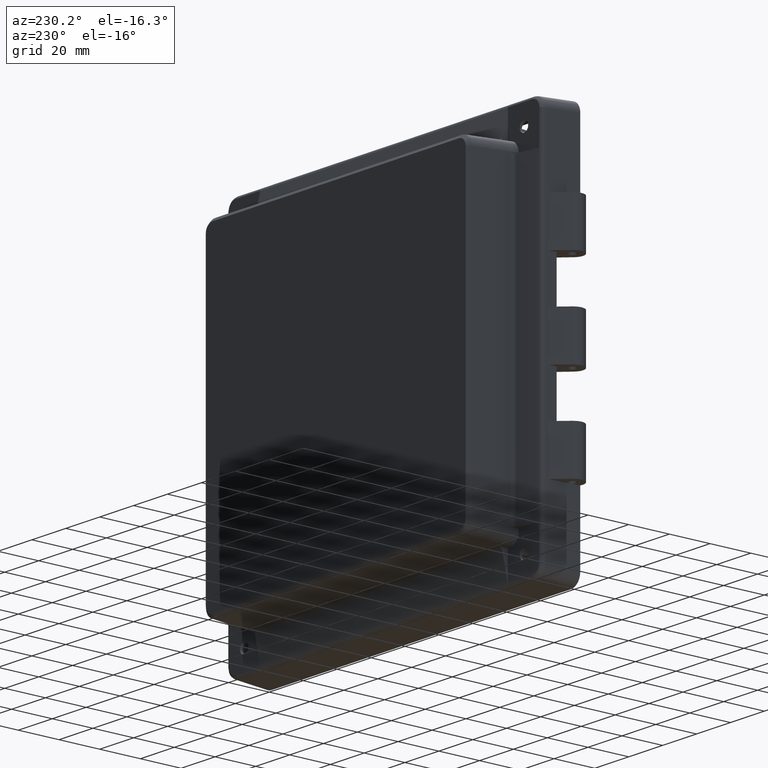
[diagram: clean part render]
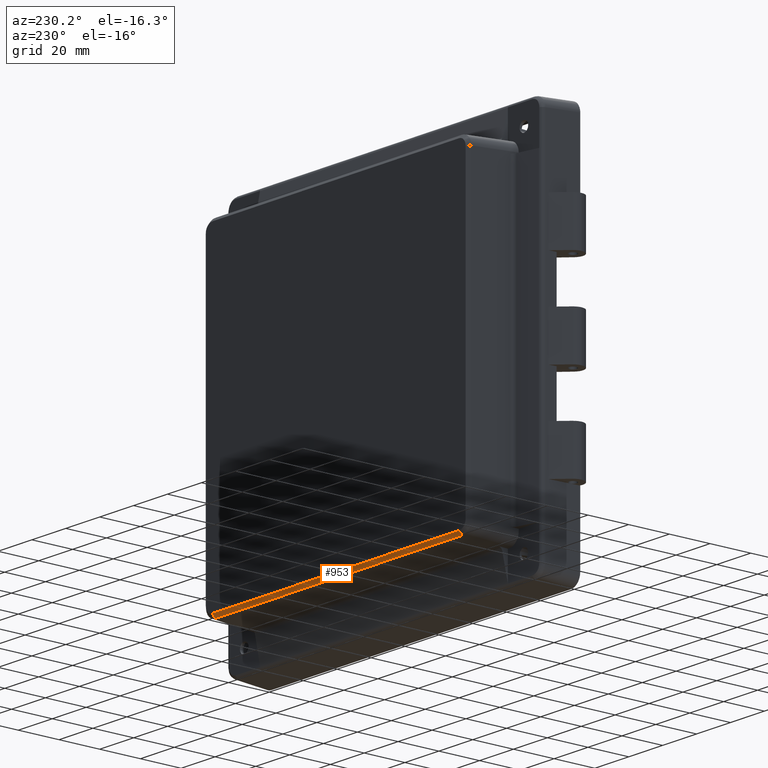
[diagram: same view with one face highlighted and labeled with its STEP entity id]
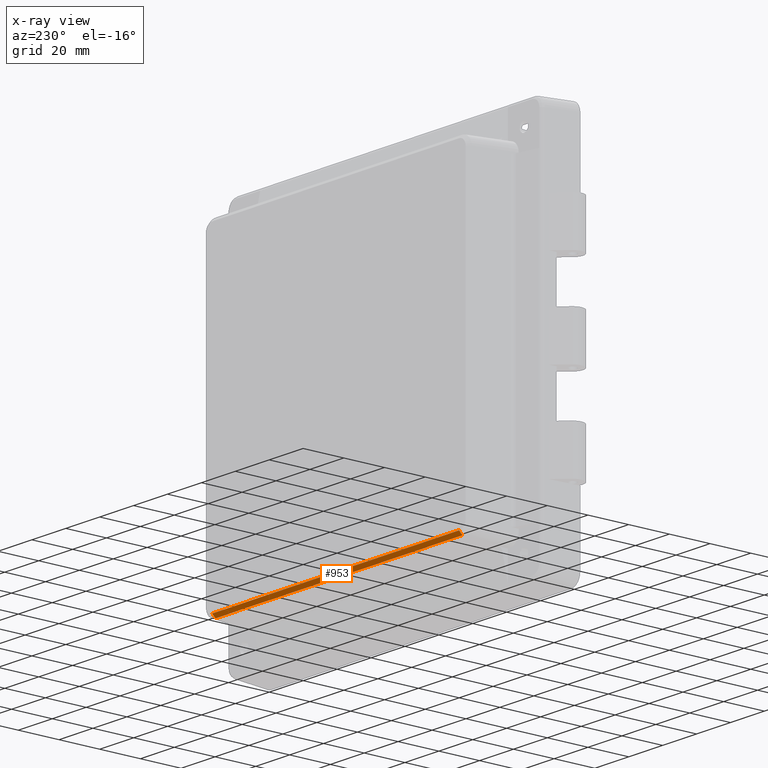
[diagram: x-ray of the same camera — body ghosted, the highlighted face saturated]
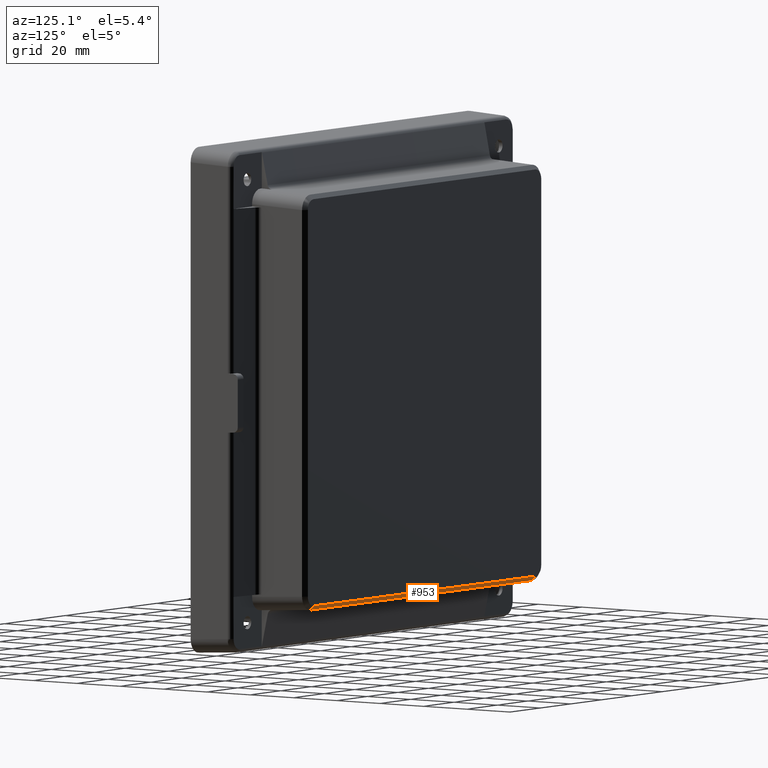
[diagram: same view with one face highlighted and labeled with its STEP entity id]
A machine part, auxiliary view. The second image highlights one B-rep face of the part: STEP entity #953.
The next image is the same camera in x-ray: the body ghosted, the highlighted face saturated — about 0% of this face is hidden behind the body in this view.
A second angle (auxiliary view) of the same face is appended — the face is thin or edge-on in the first view.
In plain terms, the highlighted planar face has unit normal (0, -0.7431, 0.6691).
Its self-contained STEP definition (entity closure, byte-faithful):
#245 = EDGE_CURVE ( 'NONE', #3470, #3496, #5541, .T. ) ;
#274 = ORIENTED_EDGE ( 'NONE', *, *, #1340, .F. ) ;
#304 = LINE ( 'NONE', #6904, #1851 ) ;
#395 = EDGE_LOOP ( 'NONE', ( #4364, #1117, #917, #274 ) ) ;
#577 = CARTESIAN_POINT ( 'NONE',  ( 72.80417699759088600, 32.50205569786815100, -78.79663943874101100 ) ) ;
#740 = CARTESIAN_POINT ( 'NONE',  ( 72.80417699759088600, 33.50068523262272200, -77.68754897976452900 ) ) ;
#917 = ORIENTED_EDGE ( 'NONE', *, *, #4552, .F. ) ;
#953 = ADVANCED_FACE ( 'NONE', ( #6936 ), #6339, .F. ) ;
#1056 = B_SPLINE_CURVE_WITH_KNOTS ( 'NONE', 3,
 ( #1398, #740, #4765, #4813 ),
 .UNSPECIFIED., .F., .F.,
 ( 4, 4 ),
 ( 0.0000000000000000000, 1.000000000000000000 ),
 .UNSPECIFIED. ) ;
#1117 = ORIENTED_EDGE ( 'NONE', *, *, #245, .F. ) ;
#1242 = CARTESIAN_POINT ( 'NONE',  ( -80.00000000000000000, 34.00000000000000000, -77.13300375027627400 ) ) ;
#1340 = EDGE_CURVE ( 'NONE', #4759, #4482, #304, .T. ) ;
#1398 = CARTESIAN_POINT ( 'NONE',  ( 72.80417699759088600, 34.00000000000000000, -77.13300375027627400 ) ) ;
#1681 = CARTESIAN_POINT ( 'NONE',  ( 72.72567306322640900, 32.50205569786815800, -78.79663943874101100 ) ) ;
#1787 = AXIS2_PLACEMENT_3D ( 'NONE', #1242, #5246, #3529 ) ;
#1826 = CARTESIAN_POINT ( 'NONE',  ( -72.80417699759087200, 32.50205569786815100, -78.79663943874101100 ) ) ;
#1851 = VECTOR ( 'NONE', #4143, 1000.000000000000000 ) ;
#3470 = VERTEX_POINT ( 'NONE', #1826 ) ;
#3496 = VERTEX_POINT ( 'NONE', #577 ) ;
#3529 = DIRECTION ( 'NONE',  ( 0.0000000000000000000, -0.6691306063588520200, -0.7431448254773998000 ) ) ;
#3951 = DIRECTION ( 'NONE',  ( 1.000000000000000000, -0.0000000000000000000, -0.0000000000000000000 ) ) ;
#3989 = CARTESIAN_POINT ( 'NONE',  ( -72.80417699759085800, 34.00000000000000000, -77.13300375027627400 ) ) ;
#4143 = DIRECTION ( 'NONE',  ( -1.000000000000000000, 0.0000000000000000000, 0.0000000000000000000 ) ) ;
#4364 = ORIENTED_EDGE ( 'NONE', *, *, #7373, .T. ) ;
#4482 = VERTEX_POINT ( 'NONE', #3989 ) ;
#4551 = CARTESIAN_POINT ( 'NONE',  ( -72.80417699759085800, 34.00000000000000000, -77.13300375027627400 ) ) ;
#4552 = EDGE_CURVE ( 'NONE', #4482, #3470, #4710, .T. ) ;
#4710 = B_SPLINE_CURVE_WITH_KNOTS ( 'NONE', 1,
 ( #4551, #5698 ),
 .UNSPECIFIED., .F., .F.,
 ( 2, 2 ),
 ( 0.0000000000000000000, 1.000000000000000000 ),
 .UNSPECIFIED. ) ;
#4759 = VERTEX_POINT ( 'NONE', #6529 ) ;
#4765 = CARTESIAN_POINT ( 'NONE',  ( 72.80417699759088600, 33.00137046524543600, -78.24209420925277000 ) ) ;
#4813 = CARTESIAN_POINT ( 'NONE',  ( 72.80417699759088600, 32.50205569786815100, -78.79663943874101100 ) ) ;
#5246 = DIRECTION ( 'NONE',  ( 0.0000000000000000000, -0.7431448254773998000, 0.6691306063588520200 ) ) ;
#5541 = LINE ( 'NONE', #1681, #6354 ) ;
#5698 = CARTESIAN_POINT ( 'NONE',  ( -72.80417699759087200, 32.50205569786815100, -78.79663943874101100 ) ) ;
#6339 = PLANE ( 'NONE',  #1787 ) ;
#6354 = VECTOR ( 'NONE', #3951, 1000.000000000000000 ) ;
#6529 = CARTESIAN_POINT ( 'NONE',  ( 72.80417699759088600, 34.00000000000000000, -77.13300375027627400 ) ) ;
#6904 = CARTESIAN_POINT ( 'NONE',  ( -72.72567306322643800, 34.00000000000000000, -77.13300375027627400 ) ) ;
#6936 = FACE_OUTER_BOUND ( 'NONE', #395, .T. ) ;
#7373 = EDGE_CURVE ( 'NONE', #4759, #3496, #1056, .T. ) ;